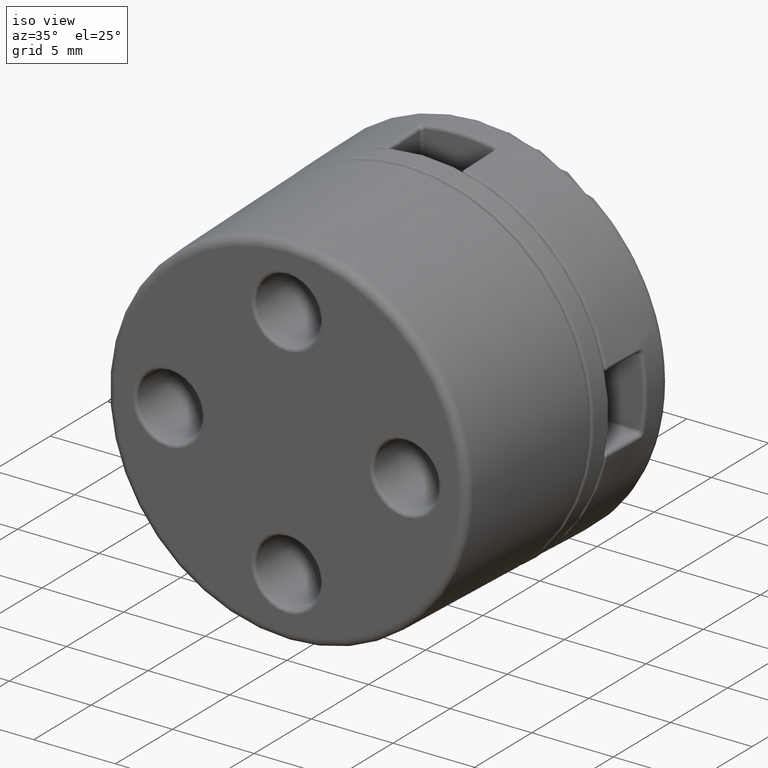
[diagram: clean part render]
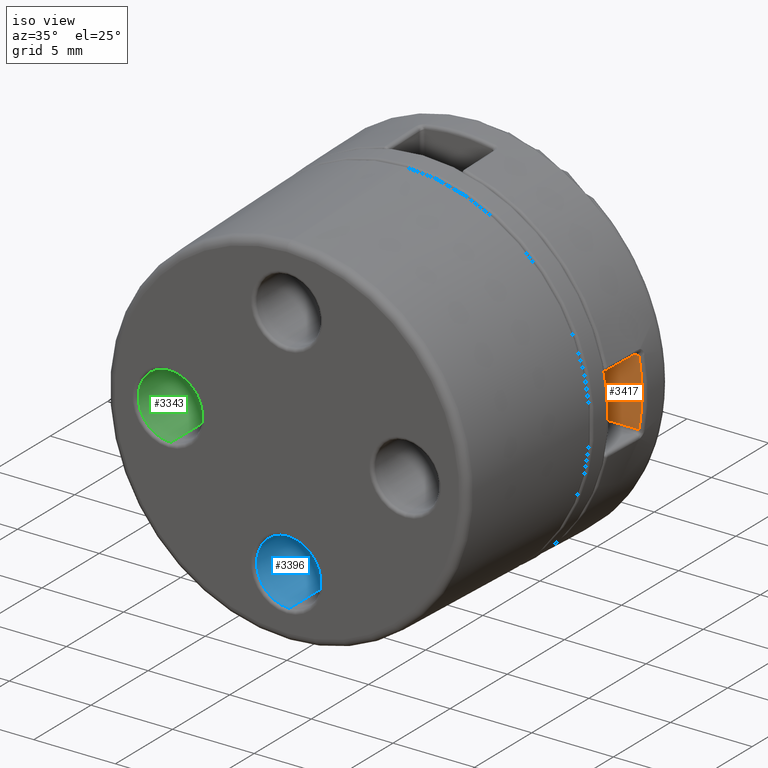
[diagram: same view with three faces highlighted in distinct colors, each labeled with its STEP entity id]
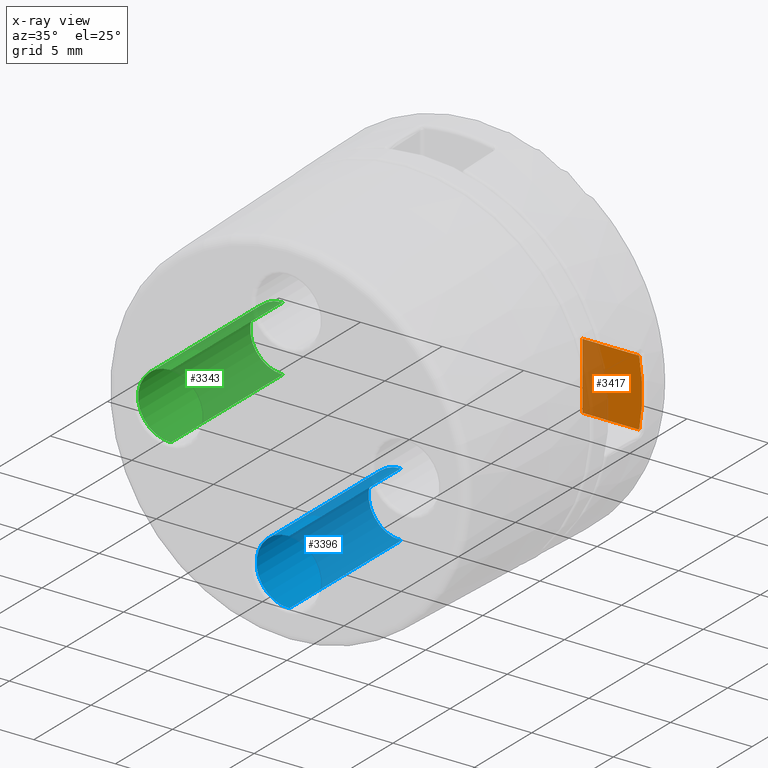
[diagram: x-ray of the same camera — body ghosted, the three highlighted faces saturated]
A machine part, iso view with three faces highlighted in distinct colors.
The next image is the same camera in x-ray (body ghosted, the three faces saturated) — at least one of them is partly hidden behind the body in this view.
Their STEP definitions:

[orange] entity #3417 — the highlighted planar face has unit normal (0, -1, 0).
#93 = CARTESIAN_POINT ( 'NONE',  ( 7.611458908937443400, 15.00000000000000400, -2.050000000000310200 ) ) ;
#94 = LINE ( 'NONE', #93, #2041 ) ;
#157 = VERTEX_POINT ( 'NONE', #2949 ) ;
#182 = VERTEX_POINT ( 'NONE', #2532 ) ;
#210 = VERTEX_POINT ( 'NONE', #2521 ) ;
#572 = CARTESIAN_POINT ( 'NONE',  ( 11.07630359871624600, 15.00000000000000400, -2.050000000000308900 ) ) ;
#952 = PLANE ( 'NONE',  #1492 ) ;
#961 = FACE_OUTER_BOUND ( 'NONE', #4279, .T. ) ;
#962 = DIRECTION ( 'NONE',  ( 0.0000000000000000000, -1.000000000000000000, 0.0000000000000000000 ) ) ;
#987 = DIRECTION ( 'NONE',  ( 0.0000000000000000000, -0.0000000000000000000, -1.000000000000000000 ) ) ;
#996 = CARTESIAN_POINT ( 'NONE',  ( 7.611458908937443400, 15.00000000000000400, -2.250000000000310400 ) ) ;
#1391 = CARTESIAN_POINT ( 'NONE',  ( 0.0000000000000000000, 15.00000000000000400, 0.0000000000000000000 ) ) ;
#1392 = DIRECTION ( 'NONE',  ( 0.0000000000000000000, -1.000000000000000000, 0.0000000000000000000 ) ) ;
#1393 = DIRECTION ( 'NONE',  ( 0.0000000000000000000, 0.0000000000000000000, -1.000000000000000000 ) ) ;
#1424 = DIRECTION ( 'NONE',  ( 1.000000000000000000, 0.0000000000000000000, 3.899466954721545100E-016 ) ) ;
#1492 = AXIS2_PLACEMENT_3D ( 'NONE', #996, #962, #987 ) ;
#1938 = VECTOR ( 'NONE', #2438, 1000.000000000000000 ) ;
#1983 = AXIS2_PLACEMENT_3D ( 'NONE', #1391, #1392, #1393 ) ;
#1984 = VECTOR ( 'NONE', #3471, 1000.000000000000000 ) ;
#2041 = VECTOR ( 'NONE', #1424, 1000.000000000000000 ) ;
#2055 = CIRCLE ( 'NONE', #1983, 11.26441305221606900 ) ;
#2412 = CARTESIAN_POINT ( 'NONE',  ( 7.611458908937297700, 15.00000000000000400, -2.657526674192588900E-014 ) ) ;
#2431 = LINE ( 'NONE', #2412, #1938 ) ;
#2438 = DIRECTION ( 'NONE',  ( 6.476300976979262300E-014, 0.0000000000000000000, -1.000000000000000000 ) ) ;
#2521 = CARTESIAN_POINT ( 'NONE',  ( 7.611458908937164500, 15.00000000000000400, 2.049999999999691200 ) ) ;
#2532 = CARTESIAN_POINT ( 'NONE',  ( 7.611458908937430000, 15.00000000000000400, -2.050000000000310200 ) ) ;
#2949 = CARTESIAN_POINT ( 'NONE',  ( 11.07630359871633100, 15.00000000000000400, 2.049999999999854600 ) ) ;
#3162 = EDGE_CURVE ( 'NONE', #210, #182, #2431, .T. ) ;
#3205 = EDGE_CURVE ( 'NONE', #157, #210, #3475, .T. ) ;
#3215 = EDGE_CURVE ( 'NONE', #182, #3328, #94, .T. ) ;
#3216 = EDGE_CURVE ( 'NONE', #3328, #157, #2055, .T. ) ;
#3328 = VERTEX_POINT ( 'NONE', #572 ) ;
#3417 = ADVANCED_FACE ( 'NONE', ( #961 ), #952, .T. ) ;
#3471 = DIRECTION ( 'NONE',  ( -1.000000000000000000, 0.0000000000000000000, -4.702757147394297300E-014 ) ) ;
#3475 = LINE ( 'NONE', #3476, #1984 ) ;
#3476 = CARTESIAN_POINT ( 'NONE',  ( 7.611458908937240900, 15.00000000000000400, 2.049999999999691200 ) ) ;
#3512 = ORIENTED_EDGE ( 'NONE', *, *, #3215, .T. ) ;
#3513 = ORIENTED_EDGE ( 'NONE', *, *, #3205, .T. ) ;
#3811 = ORIENTED_EDGE ( 'NONE', *, *, #3162, .T. ) ;
#3861 = ORIENTED_EDGE ( 'NONE', *, *, #3216, .T. ) ;
#4279 = EDGE_LOOP ( 'NONE', ( #3811, #3512, #3861, #3513 ) ) ;

[blue] entity #3396 — the highlighted cylindrical surface (partial cylindrical patch) has radius 2 mm, axis along (-0, -1, -0).
#3 = CARTESIAN_POINT ( 'NONE',  ( 0.001343208625347444200, 0.2000000000000005100, -5.249999875571765200 ) ) ;
#442 = CARTESIAN_POINT ( 'NONE',  ( 0.001343208625347444200, 10.00000000000000000, -5.249999875571765200 ) ) ;
#789 = FACE_OUTER_BOUND ( 'NONE', #4191, .T. ) ;
#847 = DIRECTION ( 'NONE',  ( -0.0000000000000000000, -1.000000000000000000, -0.0000000000000000000 ) ) ;
#855 = DIRECTION ( 'NONE',  ( 0.0000000000000000000, 0.0000000000000000000, -1.000000000000000000 ) ) ;
#856 = CARTESIAN_POINT ( 'NONE',  ( 0.001343208625347199200, 10.00000000000000000, -7.249999875571765200 ) ) ;
#885 = CYLINDRICAL_SURFACE ( 'NONE', #1526, 2.000000000000000900 ) ;
#1351 = CARTESIAN_POINT ( 'NONE',  ( 0.001343208625347199200, 0.2000000000000005100, -9.249999875571766900 ) ) ;
#1364 = CARTESIAN_POINT ( 'NONE',  ( 0.001343208625347199200, 10.00000000000000000, -9.249999875571766900 ) ) ;
#1526 = AXIS2_PLACEMENT_3D ( 'NONE', #856, #847, #855 ) ;
#1737 = AXIS2_PLACEMENT_3D ( 'NONE', #2738, #2739, #2719 ) ;
#1758 = CIRCLE ( 'NONE', #1737, 2.000000000000000900 ) ;
#1785 = VECTOR ( 'NONE', #2834, 1000.000000000000000 ) ;
#1866 = VECTOR ( 'NONE', #2879, 1000.000000000000000 ) ;
#1922 = AXIS2_PLACEMENT_3D ( 'NONE', #2253, #2251, #2309 ) ;
#1927 = CIRCLE ( 'NONE', #1922, 2.000000000000000900 ) ;
#2251 = DIRECTION ( 'NONE',  ( -0.0000000000000000000, -1.000000000000000000, -0.0000000000000000000 ) ) ;
#2253 = CARTESIAN_POINT ( 'NONE',  ( 0.001343208625347199200, 0.2000000000000005100, -7.249999875571765200 ) ) ;
#2309 = DIRECTION ( 'NONE',  ( 0.0000000000000000000, 0.0000000000000000000, -1.000000000000000000 ) ) ;
#2719 = DIRECTION ( 'NONE',  ( 0.0000000000000000000, 0.0000000000000000000, -1.000000000000000000 ) ) ;
#2738 = CARTESIAN_POINT ( 'NONE',  ( 0.001343208625347199200, 10.00000000000000000, -7.249999875571765200 ) ) ;
#2739 = DIRECTION ( 'NONE',  ( 0.0000000000000000000, -1.000000000000000000, 0.0000000000000000000 ) ) ;
#2800 = CARTESIAN_POINT ( 'NONE',  ( 0.001343208625347199200, 10.00000000000000000, -9.249999875571766900 ) ) ;
#2824 = LINE ( 'NONE', #2800, #1785 ) ;
#2834 = DIRECTION ( 'NONE',  ( -0.0000000000000000000, -1.000000000000000000, -0.0000000000000000000 ) ) ;
#2879 = DIRECTION ( 'NONE',  ( -0.0000000000000000000, -1.000000000000000000, -0.0000000000000000000 ) ) ;
#2897 = CARTESIAN_POINT ( 'NONE',  ( 0.001343208625347444200, 10.00000000000000000, -5.249999875571765200 ) ) ;
#2917 = LINE ( 'NONE', #2897, #1866 ) ;
#3032 = EDGE_CURVE ( 'NONE', #3661, #3608, #1758, .T. ) ;
#3062 = EDGE_CURVE ( 'NONE', #3608, #3628, #2824, .T. ) ;
#3089 = EDGE_CURVE ( 'NONE', #3661, #3678, #2917, .T. ) ;
#3138 = EDGE_CURVE ( 'NONE', #3678, #3628, #1927, .T. ) ;
#3396 = ADVANCED_FACE ( 'NONE', ( #789 ), #885, .F. ) ;
#3608 = VERTEX_POINT ( 'NONE', #1364 ) ;
#3628 = VERTEX_POINT ( 'NONE', #1351 ) ;
#3661 = VERTEX_POINT ( 'NONE', #442 ) ;
#3678 = VERTEX_POINT ( 'NONE', #3 ) ;
#3903 = ORIENTED_EDGE ( 'NONE', *, *, #3138, .T. ) ;
#3905 = ORIENTED_EDGE ( 'NONE', *, *, #3062, .F. ) ;
#4022 = ORIENTED_EDGE ( 'NONE', *, *, #3089, .T. ) ;
#4146 = ORIENTED_EDGE ( 'NONE', *, *, #3032, .F. ) ;
#4191 = EDGE_LOOP ( 'NONE', ( #4146, #4022, #3903, #3905 ) ) ;

[green] entity #3343 — the highlighted cylindrical surface (partial cylindrical patch) has radius 2 mm, axis along (-0, -1, -0).
#628 = CYLINDRICAL_SURFACE ( 'NONE', #1472, 2.000000000000000400 ) ;
#639 = DIRECTION ( 'NONE',  ( 0.0000000000000000000, 0.0000000000000000000, -1.000000000000000000 ) ) ;
#642 = DIRECTION ( 'NONE',  ( -0.0000000000000000000, -1.000000000000000000, -0.0000000000000000000 ) ) ;
#651 = FACE_OUTER_BOUND ( 'NONE', #4189, .T. ) ;
#656 = CARTESIAN_POINT ( 'NONE',  ( -7.249999875571764300, 10.00000000000000000, -0.001343208625344326100 ) ) ;
#1357 = CARTESIAN_POINT ( 'NONE',  ( -7.249999875571764300, 10.00000000000000000, -2.001343208625344900 ) ) ;
#1368 = CARTESIAN_POINT ( 'NONE',  ( -7.249999875571764300, 10.00000000000000000, 1.998656791374656000 ) ) ;
#1370 = CARTESIAN_POINT ( 'NONE',  ( -7.249999875571764300, 0.2000000000000005100, -2.001343208625344900 ) ) ;
#1384 = CARTESIAN_POINT ( 'NONE',  ( -7.249999875571764300, 0.2000000000000005100, 1.998656791374656000 ) ) ;
#1472 = AXIS2_PLACEMENT_3D ( 'NONE', #656, #642, #639 ) ;
#1779 = VECTOR ( 'NONE', #2805, 1000.000000000000000 ) ;
#1782 = AXIS2_PLACEMENT_3D ( 'NONE', #2803, #2796, #2826 ) ;
#1825 = CIRCLE ( 'NONE', #1782, 2.000000000000000400 ) ;
#1877 = VECTOR ( 'NONE', #2916, 1000.000000000000000 ) ;
#1945 = AXIS2_PLACEMENT_3D ( 'NONE', #2278, #2279, #2281 ) ;
#1974 = CIRCLE ( 'NONE', #1945, 2.000000000000000400 ) ;
#2278 = CARTESIAN_POINT ( 'NONE',  ( -7.249999875571764300, 0.2000000000000005100, -0.001343208625344326100 ) ) ;
#2279 = DIRECTION ( 'NONE',  ( -0.0000000000000000000, -1.000000000000000000, -0.0000000000000000000 ) ) ;
#2281 = DIRECTION ( 'NONE',  ( 0.0000000000000000000, 0.0000000000000000000, -1.000000000000000000 ) ) ;
#2796 = DIRECTION ( 'NONE',  ( 0.0000000000000000000, -1.000000000000000000, 0.0000000000000000000 ) ) ;
#2802 = LINE ( 'NONE', #2819, #1779 ) ;
#2803 = CARTESIAN_POINT ( 'NONE',  ( -7.249999875571764300, 10.00000000000000000, -0.001343208625344326100 ) ) ;
#2805 = DIRECTION ( 'NONE',  ( -0.0000000000000000000, -1.000000000000000000, -0.0000000000000000000 ) ) ;
#2819 = CARTESIAN_POINT ( 'NONE',  ( -7.249999875571764300, 10.00000000000000000, 1.998656791374656000 ) ) ;
#2826 = DIRECTION ( 'NONE',  ( 0.0000000000000000000, 0.0000000000000000000, -1.000000000000000000 ) ) ;
#2888 = LINE ( 'NONE', #2891, #1877 ) ;
#2891 = CARTESIAN_POINT ( 'NONE',  ( -7.249999875571764300, 10.00000000000000000, -2.001343208625344900 ) ) ;
#2916 = DIRECTION ( 'NONE',  ( -0.0000000000000000000, -1.000000000000000000, -0.0000000000000000000 ) ) ;
#3063 = EDGE_CURVE ( 'NONE', #3621, #3640, #2802, .T. ) ;
#3065 = EDGE_CURVE ( 'NONE', #3621, #3645, #1825, .T. ) ;
#3088 = EDGE_CURVE ( 'NONE', #3645, #3622, #2888, .T. ) ;
#3146 = EDGE_CURVE ( 'NONE', #3640, #3622, #1974, .T. ) ;
#3343 = ADVANCED_FACE ( 'NONE', ( #651 ), #628, .F. ) ;
#3621 = VERTEX_POINT ( 'NONE', #1368 ) ;
#3622 = VERTEX_POINT ( 'NONE', #1370 ) ;
#3640 = VERTEX_POINT ( 'NONE', #1384 ) ;
#3645 = VERTEX_POINT ( 'NONE', #1357 ) ;
#4021 = ORIENTED_EDGE ( 'NONE', *, *, #3146, .T. ) ;
#4024 = ORIENTED_EDGE ( 'NONE', *, *, #3088, .F. ) ;
#4026 = ORIENTED_EDGE ( 'NONE', *, *, #3065, .F. ) ;
#4129 = ORIENTED_EDGE ( 'NONE', *, *, #3063, .T. ) ;
#4189 = EDGE_LOOP ( 'NONE', ( #4026, #4129, #4021, #4024 ) ) ;